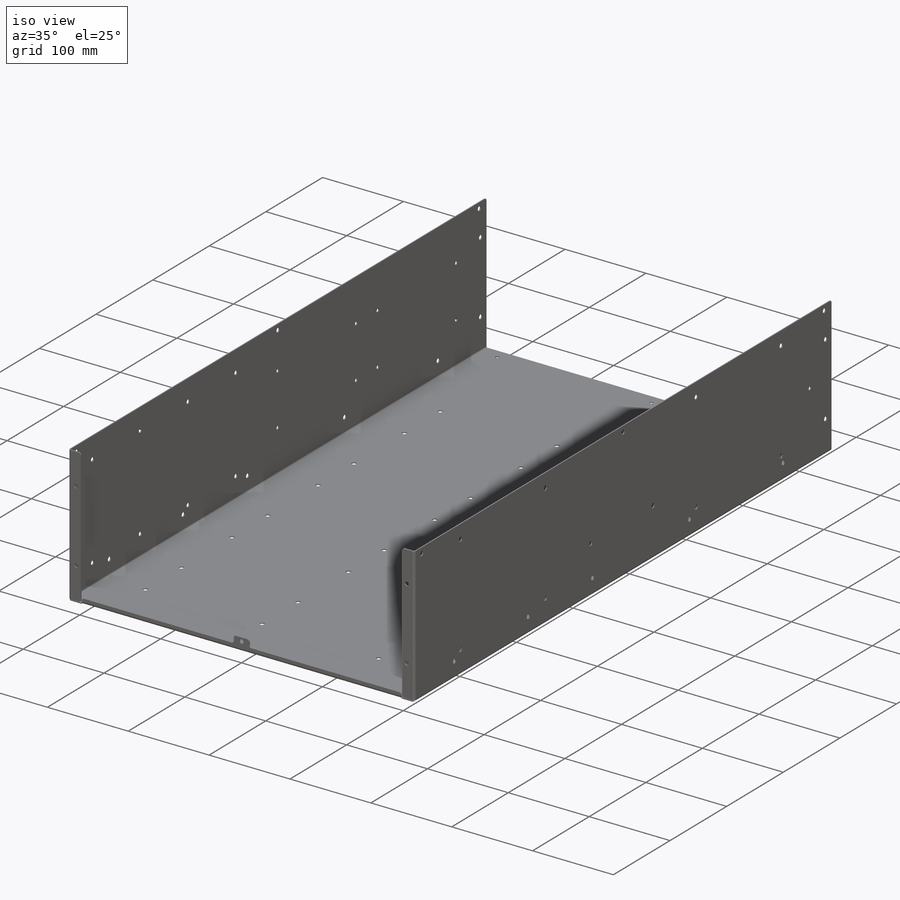
[diagram: iso view]
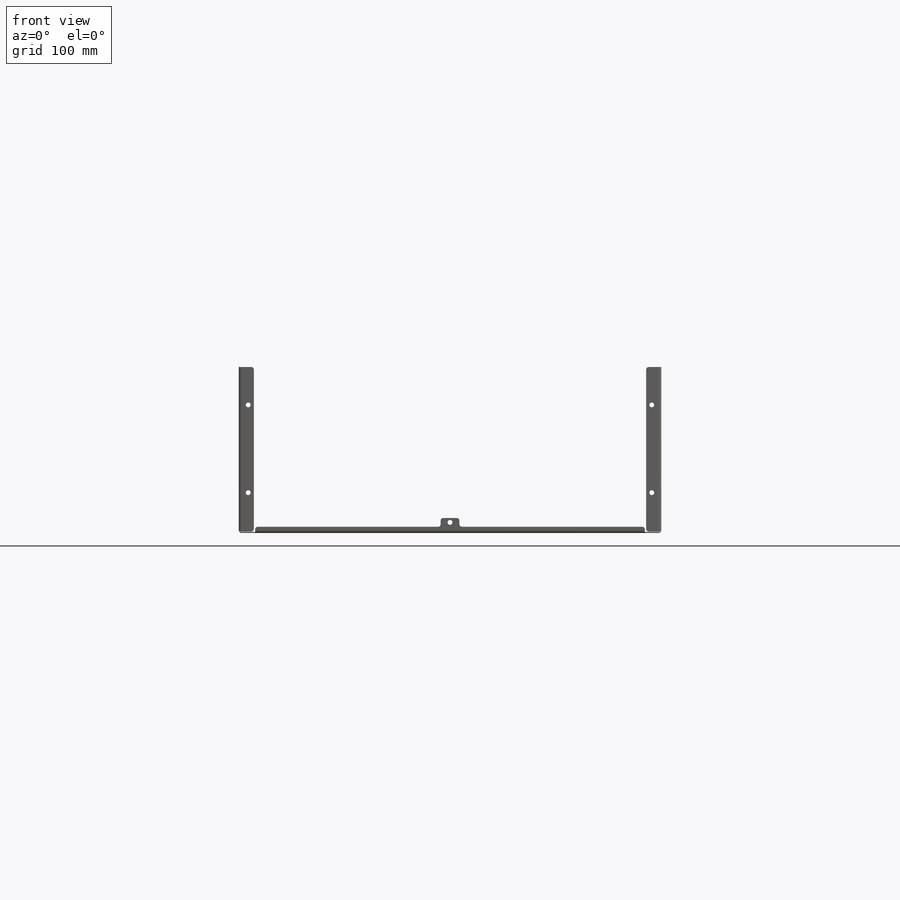
[diagram: front view]
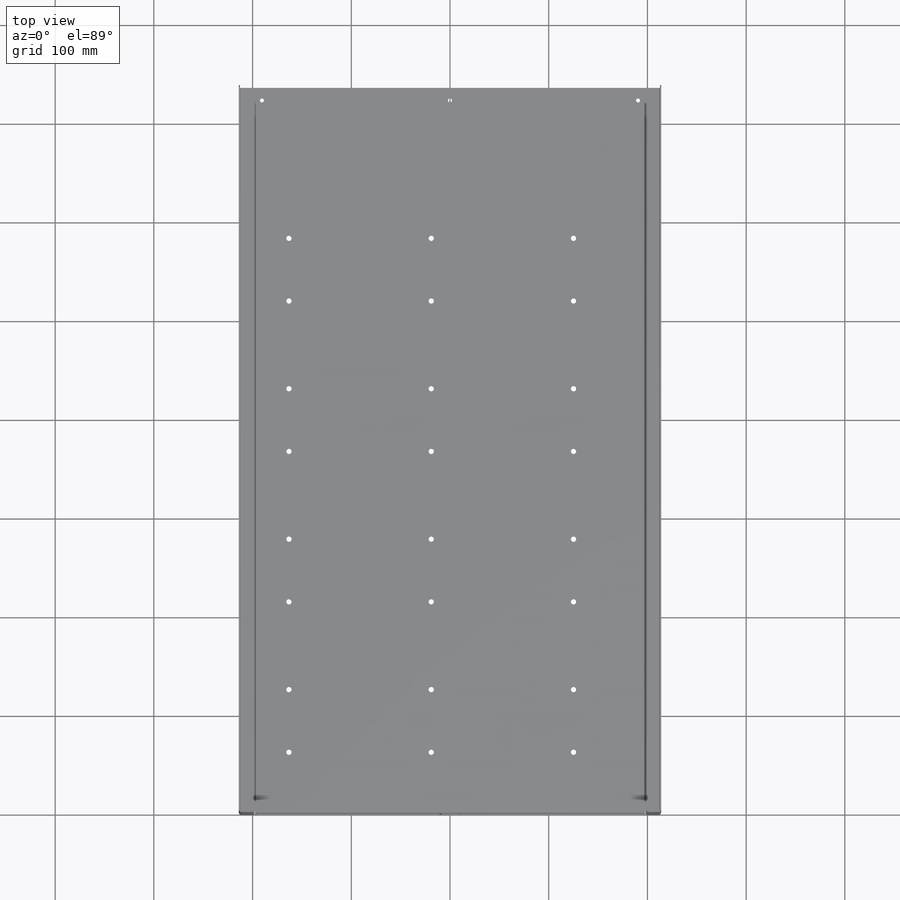
[diagram: top view]
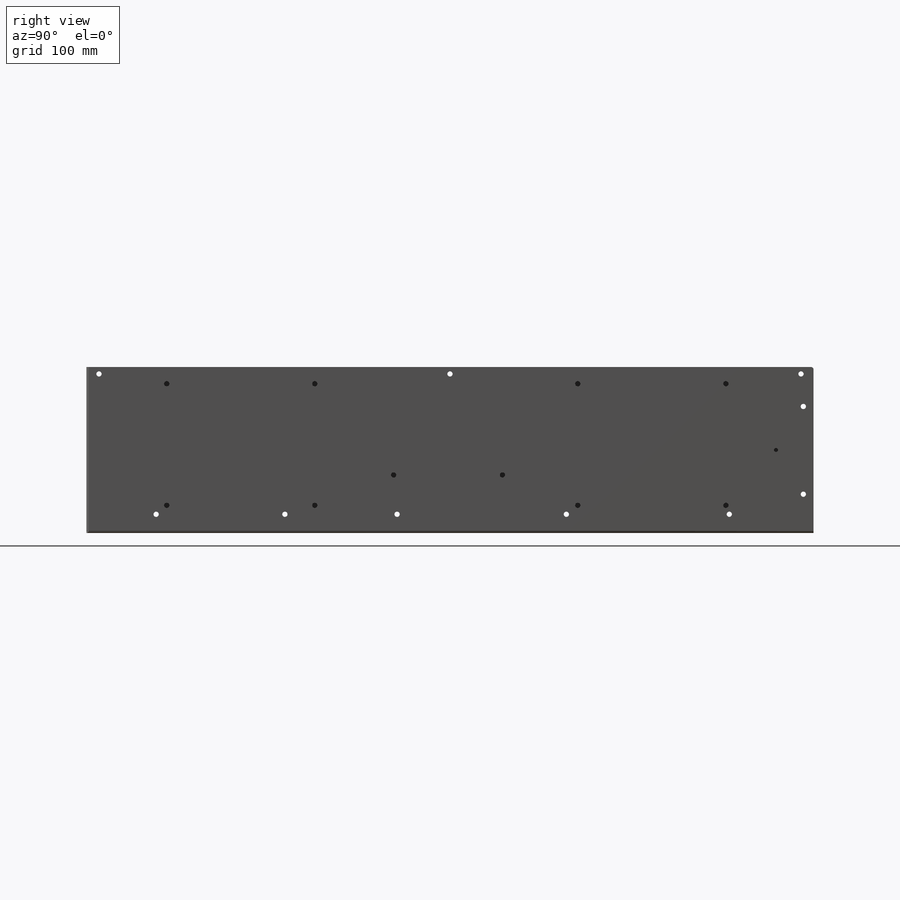
[diagram: right view]
SOLIDWORKS PART (.sldprt)
format: sldprt  version: not decoded by parser v0  size: 1,689,600 bytes
history: native  units: mm
features: sketch x12, cut_extrude x7, fillet x4, sheet_metal_op x2, material x1, mirror x1 + 5 further entries (+12 scaffold rows collapsed; 1 parser-record rows omitted)
feature tree (45):
  scaffold x12  (default folders/planes/origin — collapsed)
  material  "Plain Carbon Steel"
  sketch  "Sketch1"  dims[c1.D1=425.45mm c1.D2=167.005mm c2.D1=425.45mm]
  sheet_metal_op  "Sheet-Metal1"
  sheet_metal_op  "Base-Flange1"
  sketch  "Sketch9"  dims[c1.D1=1.27mm c1.D4=90.0deg c1.D5=3.0 c1.D8=0.6096mm c1.D9=0.6096mm c2.D1=1.016mm c2.D2=500.0mm c2.D3=0.0mm c2.D6=10.0mm c2.D7=15.24mm c3.D1=2000.0mm]
  fillet  "Fillet1"  Radius=2.54mm
  mirror  "Mirror3"
  sketch  "Sketch15"  dims[c1.D1=1.27mm c1.D2=1.27mm c1.D3=6.35mm c1.D4=19.05mm c1.D5=15.24mm c2.D1=1.27mm c2.D4=90.0deg c2.D5=6.0 c2.D8=0.6096mm c2.D9=0.6096mm c3.D1=1.016mm c3.D2=500.0mm c3.D3=0.0mm c3.D6=10.0mm c3.D7=15.24mm]
  fillet  "Fillet3"  Radius=2.54mm
  fillet  "Fillet5"  Radius=2.54mm
  fillet  "Fillet6"  Radius=0.508mm
  sketch  "Sketch16"  dims[D7=4.953mm D8=4.953mm D1=9.525mm D2=9.525mm D3=9.525mm D4=88.9mm D5=3.175mm D6=88.519mm]
  cut_extrude  "Cut-Extrude1"  [1 undecoded]
  sketch  "Sketch17"  dims[c1.D4=5.4102mm c1.D7=5.4102mm c1.D1=5.4102mm c1.D8=5.4102mm c2.D1=12.7mm c2.D2=35.8648mm c3.D2=90.0deg c4.D2=12.7mm c4.D3=161.163mm c4.D5=355.6mm c4.D6=355.6mm c4.D7=355.6mm c4.D4=12.7mm]
  cut_extrude  "Cut-Extrude2"  [1 undecoded]
  sketch  "Sketch18"  dims[D3=4.1402mm D1=190.5mm D2=12.7mm]
  cut_extrude  "Cut-Extrude3"  [1 undecoded]
  sketch  "Sketch22"  dims[D1=5.4102mm D2=70.612mm D3=201.041mm D4=314.706mm D5=486.156mm D6=651.256mm D7=~18.98914mm]
  cut_extrude  "Cut-Extrude7"  [1 undecoded]
  sketch  "Sketch24"  dims[c1.D5=5.3848mm c1.D9=5.08mm c1.D14=5.08mm c2.D5=5.4102mm c2.D10=5.3848mm c2.D9=5.4102mm c2.D11=5.4102mm c3.D5=5.4102mm c3.D19=4.1402mm c3.D1=88.9mm c3.D2=692.15mm c3.D3=0.0mm c3.D4=0.0mm c3.D6=533.4mm c3.D7=609.6mm c3.D8=25.4mm c3.D9=88.9mm c3.D10=139.7mm c3.D11=25.4mm c3.D12=115.57mm c3.D13=38.1mm c3.D14=84.455mm c3.D15=84.455mm c3.D16=84.455mm c4.D6=120.65mm c4.D7=95.25mm c4.D8=150.0mm c4.D17=136.906mm c4.D18=355.6mm c4.D19=31.75mm c4.D11=120.65mm c4.D12=150.0mm c4.D13=110.2106mm c4.D14=56.1975mm c5.D6=19.05mm c5.D5=88.9mm c5.D7=311.15mm c5.D8=19.05mm c5.D9=69.85mm c5.D12=123.19mm c5.D15=150.0mm c6.D6=123.19mm c6.D16=150.0mm c6.D8=81.28mm c6.D9=25.4mm c6.D17=25.4mm c6.D18=88.9mm c6.D2=38.1mm]
  cut_extrude  "Cut-Extrude8"  [1 undecoded]
  sketch  "Sketch25"  dims[c1.D3=4.1402mm c1.D4=5.4102mm c1.D14=5.4102mm c1.D13=5.4102mm c2.D4=5.4102mm c2.D10=5.08mm c2.D3=4.1402mm c2.D6=4.1402mm c2.D1=138.2776mm c2.D2=177.8mm c3.D1=0.0mm c3.D2=0.0mm c3.D5=177.8mm c3.D6=262.3312mm c3.D7=346.456mm c3.D8=539.75mm c3.D9=678.4086mm c3.D10=22.4028mm c3.D11=50.8mm c3.D12=114.3mm c3.D13=138.2776mm c3.D14=115.8875mm c4.D13=115.8875mm c4.D4=~195.368809mm c4.D5=25.4mm c4.D6=120.65mm c4.D7=150.0mm c4.D8=88.9mm c5.D5=31.75mm c5.D9=138.6586mm c5.D13=115.57mm c5.D14=84.455mm c5.D15=84.455mm c5.D16=84.455mm c5.D17=~38.575398mm c5.D18=40.64mm c5.D4=63.5mm c6.D5=50.8mm c6.D4=138.6586mm c7.D5=63.5mm c7.D7=138.6586mm c7.D8=63.5mm c7.D9=38.1mm c7.D11=50.8mm c7.D3=63.5mm c7.D4=138.6586mm c8.D5=138.6586mm c8.D7=38.1mm c8.D8=53.34mm c8.D9=50.8mm c8.D11=63.5mm c8.D12=38.1mm]
  cut_extrude  "Cut-Extrude9"  [1 undecoded]
  sketch  "Sketch26"  dims[c1.D3=5.4102mm c1.D5=~12.060597mm c1.D8=5.4102mm c1.D9=~16.546575mm c1.D4=5.4102mm c2.D5=5.4102mm c2.D3=5.4102mm c2.D1=61.9252mm c2.D2=76.2mm c3.D1=0.0mm c3.D2=0.0mm c3.D4=61.9252mm c3.D5=120.6627mm c3.D6=150.8252mm c3.D7=209.5627mm c3.D8=239.7252mm c3.D9=298.4627mm c3.D10=328.6252mm c3.D11=387.3627mm c3.D12=76.2mm c3.D13=152.4mm c3.D14=228.6mm c3.D15=304.8mm c3.D16=381.0mm c3.D17=457.2mm c4.D4=63.5mm c4.D5=63.5mm c5.D4=63.5mm c5.D6=50.8mm c5.D7=50.8mm c5.D8=63.5mm c5.D3=65.9892mm c5.D5=63.5mm c6.D6=66.04mm c6.D4=288.29mm c6.D5=63.5mm c7.D6=50.8mm c7.D7=63.5mm c7.D8=63.5mm c7.D9=63.5mm c7.D10=63.5mm c7.D11=88.9mm c7.D12=88.9mm c7.D13=88.9mm c7.D14=734.1108mm]
  cut_extrude  "Cut-Extrude10"  [1 undecoded]
  "Flat-Pattern1"
  sketch  "Bend-Lines1"
  sketch  "Bounding-Box1"
  "Flatten-<EdgeBend1>1"
  "Flatten-<MirrorBend5>1"
  "Flatten-<MirrorBend6>1"
  "Flatten-<EdgeBend3>1"
  parser-record x1  (decoder bookkeeping rows leaked as tree rows — omitted from the tree; the rows remain in map.json)
decode coverage: 14 of 26 modeling features carry decoded parameters; 5 rows unclassified (native names shown)
note: ~ marks probable driven/reference dimensions
note: 7 parameter values undecoded
summary: no parameter record found for 7 features
note: suppression state not decoded; provenance and decode notes live in map.json
